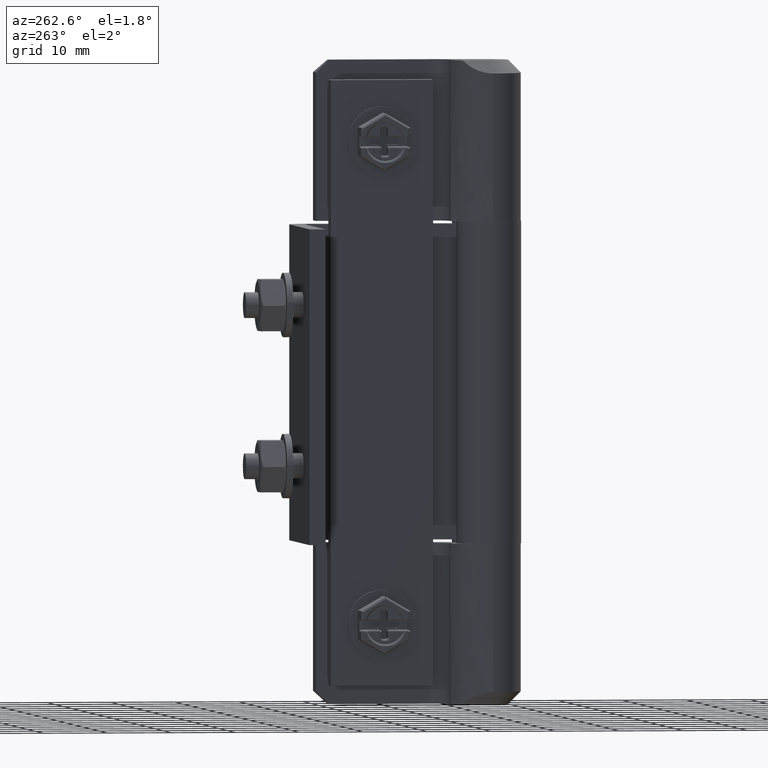
[diagram: clean part render]
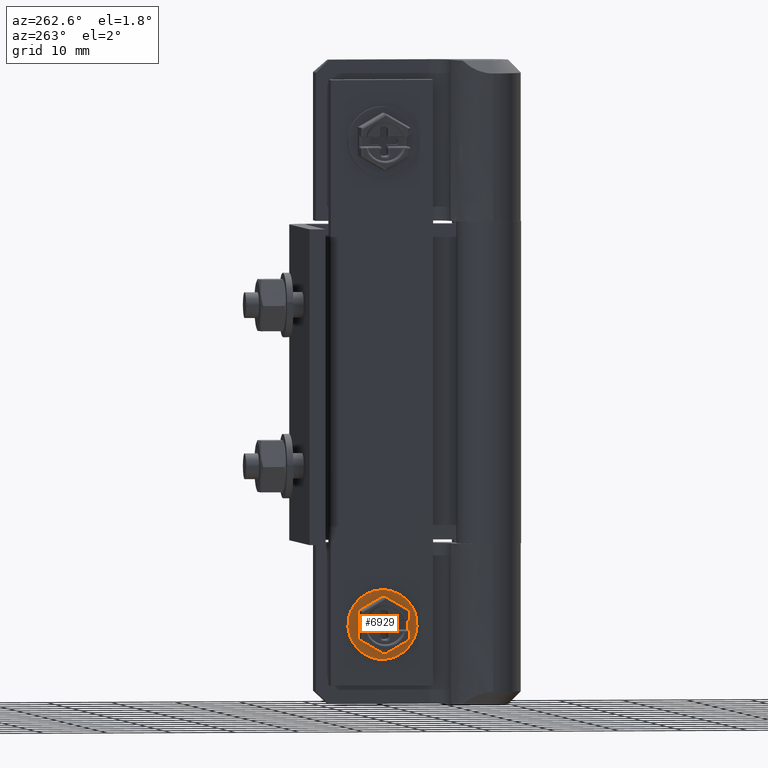
[diagram: same view with one face highlighted and labeled with its STEP entity id]
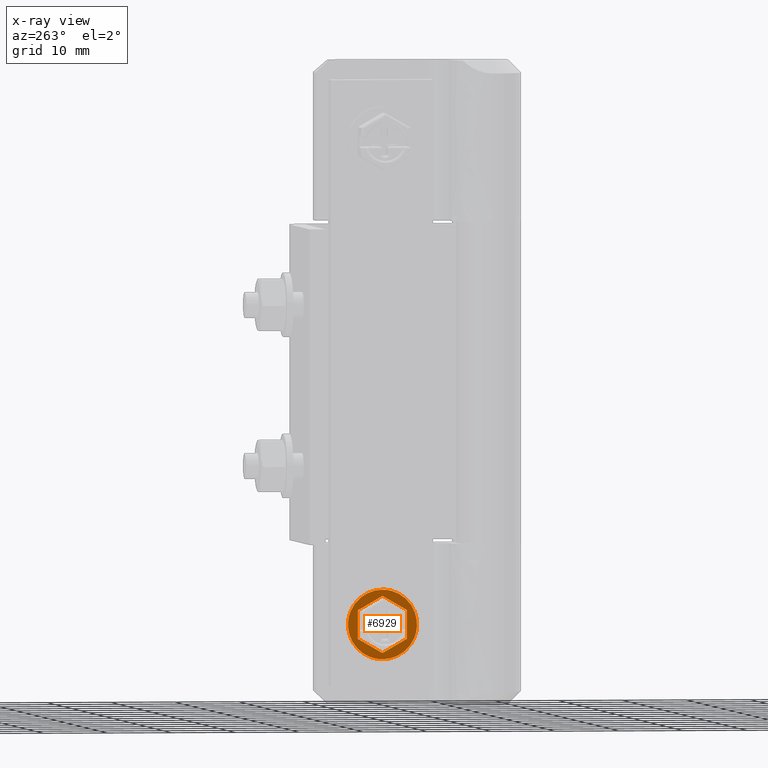
[diagram: x-ray of the same camera — body ghosted, the highlighted face saturated]
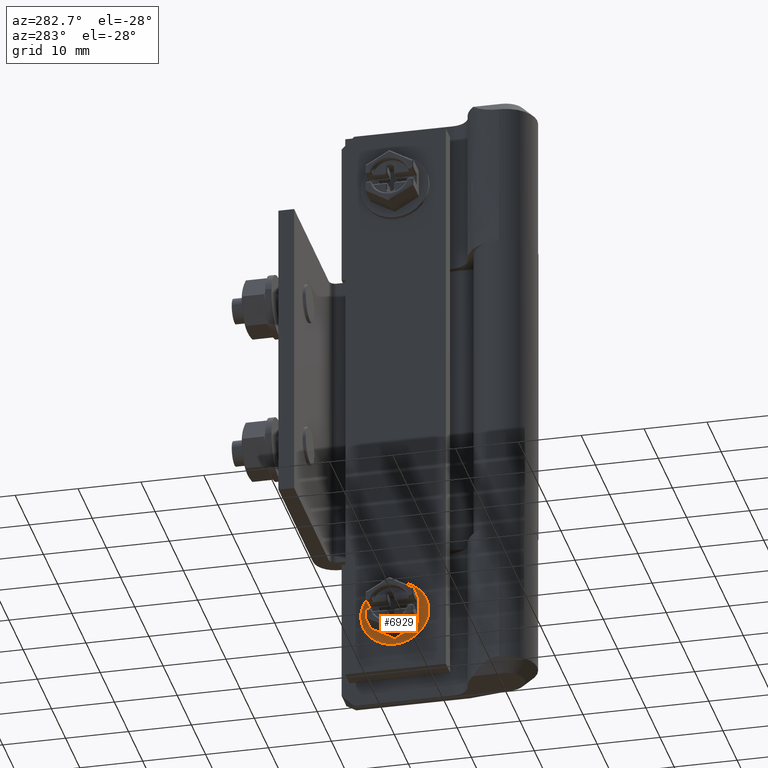
[diagram: same view with one face highlighted and labeled with its STEP entity id]
A machine part, auxiliary view. The second image highlights one B-rep face of the part: STEP entity #6929.
The next image is the same camera in x-ray: the body ghosted, the highlighted face saturated — about 0% of this face is hidden behind the body in this view.
A second angle (auxiliary view) of the same face is appended — the face is thin or edge-on in the first view.
In plain terms, the highlighted face is a freeform B-spline surface patch.
Its self-contained STEP definition (entity closure, byte-faithful):
#2905=CARTESIAN_POINT('',(-2.950000056577860,22.389927458798571,87.829566285290184));
#2906=VERTEX_POINT('',#2905);
#2912=CARTESIAN_POINT('',(-2.950000056577860,16.999999291319799,92.899904412513237));
#2913=VERTEX_POINT('',#2912);
#2914=CARTESIAN_POINT('',(-2.950000056577860,16.999999291319799,92.899904412513237));
#2915=CARTESIAN_POINT('',(-2.950000056577860,22.079812293668045,92.899904412513251));
#2916=CARTESIAN_POINT('',(-2.950000056577860,22.389927458798574,87.829566285290184));
#2924=(BOUNDED_CURVE()B_SPLINE_CURVE(2,(#2914,#2915,#2916),.UNSPECIFIED.,.F.,.U.)B_SPLINE_CURVE_WITH_KNOTS((3,3),(0.500000000000000,0.739332962234486),.UNSPECIFIED.)CURVE()GEOMETRIC_REPRESENTATION_ITEM()RATIONAL_B_SPLINE_CURVE((1.0,0.719603993291931,0.976072041657167))REPRESENTATION_ITEM(''));
#2925=EDGE_CURVE('',#2913,#2906,#2924,.T.);
#2927=CARTESIAN_POINT('',(-2.950000056577860,11.637747594275600,86.862519258498040));
#2928=VERTEX_POINT('',#2927);
#2929=CARTESIAN_POINT('',(-2.950000056577860,11.637747594275595,86.862519258498040));
#2930=CARTESIAN_POINT('',(-2.950000056577860,11.599999034833559,87.180093894607069));
#2931=CARTESIAN_POINT('',(-2.950000056577860,11.599999034833560,87.499904156027000));
#2932=CARTESIAN_POINT('',(-2.950000056577860,11.599999034833559,92.899904412513251));
#2933=CARTESIAN_POINT('',(-2.950000056577860,16.999999291319799,92.899904412513237));
#2941=(BOUNDED_CURVE()B_SPLINE_CURVE(2,(#2929,#2930,#2931,#2932,#2933),.UNSPECIFIED.,.F.,.U.)B_SPLINE_CURVE_WITH_KNOTS((3,2,3),(0.229562473508817,0.250000000000000,0.500000000000000),.UNSPECIFIED.)CURVE()GEOMETRIC_REPRESENTATION_ITEM()RATIONAL_B_SPLINE_CURVE((0.956026754174504,0.976055948325649,1.0,0.707106781186548,1.0))REPRESENTATION_ITEM(''));
#2942=EDGE_CURVE('',#2928,#2913,#2941,.T.);
#2986=CARTESIAN_POINT('',(-2.950000056577860,16.999999291319799,82.099903899540763));
#2987=VERTEX_POINT('',#2986);
#2988=CARTESIAN_POINT('',(-2.950000056577860,16.999999291319799,82.099903899540763));
#2989=CARTESIAN_POINT('',(-2.950000056577860,12.203856623572982,82.099903899540763));
#2990=CARTESIAN_POINT('',(-2.950000056577860,11.637747594275595,86.862519258498040));
#2998=(BOUNDED_CURVE()B_SPLINE_CURVE(2,(#2988,#2989,#2990),.UNSPECIFIED.,.F.,.U.)B_SPLINE_CURVE_WITH_KNOTS((3,3),(0.0,0.229562473508817),.UNSPECIFIED.)CURVE()GEOMETRIC_REPRESENTATION_ITEM()RATIONAL_B_SPLINE_CURVE((1.0,0.731050832860899,0.956026754174504))REPRESENTATION_ITEM(''));
#2999=EDGE_CURVE('',#2987,#2928,#2998,.T.);
#3001=CARTESIAN_POINT('',(-2.950000056577860,22.389927458798578,87.829566285290184));
#3002=CARTESIAN_POINT('',(-2.950000056577861,22.399999547806040,87.664889085792936));
#3003=CARTESIAN_POINT('',(-2.950000056577860,22.399999547806040,87.499904156027000));
#3004=CARTESIAN_POINT('',(-2.950000056577860,22.399999547806040,82.099903899540763));
#3005=CARTESIAN_POINT('',(-2.950000056577860,16.999999291319799,82.099903899540763));
#3013=(BOUNDED_CURVE()B_SPLINE_CURVE(2,(#3001,#3002,#3003,#3004,#3005),.UNSPECIFIED.,.F.,.U.)B_SPLINE_CURVE_WITH_KNOTS((3,2,3),(0.739332962234487,0.750000000000000,1.0),.UNSPECIFIED.)CURVE()GEOMETRIC_REPRESENTATION_ITEM()RATIONAL_B_SPLINE_CURVE((0.976072041657168,0.987502787894617,1.0,0.707106781186548,1.0))REPRESENTATION_ITEM(''));
#3014=EDGE_CURVE('',#2906,#2987,#3013,.T.);
#6763=CARTESIAN_POINT('',(-2.950000056577860,13.159176443106521,89.717404261352613));
#6764=VERTEX_POINT('',#6763);
#6775=CARTESIAN_POINT('',(-2.950000056577890,13.159176443106521,85.282404050701103));
#6776=VERTEX_POINT('',#6775);
#6782=CARTESIAN_POINT('',(-2.950000056577890,13.159176443106521,85.282404050701103));
#6783=CARTESIAN_POINT('',(-2.950000056577860,13.159176443106521,89.717404261352613));
#6784=QUASI_UNIFORM_CURVE('',1,(#6782,#6783),.UNSPECIFIED.,.F.,.U.);
#6785=EDGE_CURVE('',#6776,#6764,#6784,.T.);
#6797=CARTESIAN_POINT('',(-2.950000056577860,16.999999291319948,83.064903945375605));
#6798=VERTEX_POINT('',#6797);
#6804=CARTESIAN_POINT('',(-2.950000056577860,16.999999291319948,83.064903945375605));
#6805=CARTESIAN_POINT('',(-2.950000056577890,13.159176443106521,85.282404050701103));
#6806=QUASI_UNIFORM_CURVE('',1,(#6804,#6805),.UNSPECIFIED.,.F.,.U.);
#6807=EDGE_CURVE('',#6798,#6776,#6806,.T.);
#6819=CARTESIAN_POINT('',(-2.950000056577860,20.840822139533099,85.282404050701317));
#6820=VERTEX_POINT('',#6819);
#6826=CARTESIAN_POINT('',(-2.950000056577860,20.840822139533099,85.282404050701317));
#6827=CARTESIAN_POINT('',(-2.950000056577860,16.999999291319948,83.064903945375605));
#6828=QUASI_UNIFORM_CURVE('',1,(#6826,#6827),.UNSPECIFIED.,.F.,.U.);
#6829=EDGE_CURVE('',#6820,#6798,#6828,.T.);
#6841=CARTESIAN_POINT('',(-2.950000056577860,20.840822139533149,89.717404261352797));
#6842=VERTEX_POINT('',#6841);
#6848=CARTESIAN_POINT('',(-2.950000056577860,20.840822139533149,89.717404261352797));
#6849=CARTESIAN_POINT('',(-2.950000056577860,20.840822139533099,85.282404050701317));
#6850=QUASI_UNIFORM_CURVE('',1,(#6848,#6849),.UNSPECIFIED.,.F.,.U.);
#6851=EDGE_CURVE('',#6842,#6820,#6850,.T.);
#6867=CARTESIAN_POINT('',(-2.950000056577860,16.999999291319948,91.934904366678495));
#6868=VERTEX_POINT('',#6867);
#6874=CARTESIAN_POINT('',(-2.950000056577860,16.999999291319948,91.934904366678495));
#6875=CARTESIAN_POINT('',(-2.950000056577860,20.840822139533149,89.717404261352797));
#6876=QUASI_UNIFORM_CURVE('',1,(#6874,#6875),.UNSPECIFIED.,.F.,.U.);
#6877=EDGE_CURVE('',#6868,#6842,#6876,.T.);
#6890=CARTESIAN_POINT('',(-2.950000056577860,13.159176443106521,89.717404261352613));
#6891=CARTESIAN_POINT('',(-2.950000056577860,16.999999291319948,91.934904366678495));
#6892=QUASI_UNIFORM_CURVE('',1,(#6890,#6891),.UNSPECIFIED.,.F.,.U.);
#6893=EDGE_CURVE('',#6764,#6868,#6892,.T.);
#6910=CARTESIAN_POINT('',(-2.950000056577890,22.939329173701928,93.439362133826748));
#6911=CARTESIAN_POINT('',(-2.950000056577890,11.060636385578720,93.439362133826748));
#6912=CARTESIAN_POINT('',(-2.950000056577890,22.939329173701928,81.560446950703493));
#6913=CARTESIAN_POINT('',(-2.950000056577890,11.060636385578720,81.560446950703493));
#6914=B_SPLINE_SURFACE_WITH_KNOTS('',1,1,((#6910,#6912),(#6911,#6913)),.UNSPECIFIED.,.F.,.F.,.U.,(2,2),(2,2),(0.0,11.878692788123210),(0.0,11.878915183123249),.UNSPECIFIED.);
#6915=ORIENTED_EDGE('',*,*,#2999,.T.);
#6916=ORIENTED_EDGE('',*,*,#2942,.T.);
#6917=ORIENTED_EDGE('',*,*,#2925,.T.);
#6918=ORIENTED_EDGE('',*,*,#3014,.T.);
#6919=EDGE_LOOP('',(#6915,#6916,#6917,#6918));
#6920=FACE_OUTER_BOUND('',#6919,.T.);
#6921=ORIENTED_EDGE('',*,*,#6877,.F.);
#6922=ORIENTED_EDGE('',*,*,#6893,.F.);
#6923=ORIENTED_EDGE('',*,*,#6785,.F.);
#6924=ORIENTED_EDGE('',*,*,#6807,.F.);
#6925=ORIENTED_EDGE('',*,*,#6829,.F.);
#6926=ORIENTED_EDGE('',*,*,#6851,.F.);
#6927=EDGE_LOOP('',(#6921,#6922,#6923,#6924,#6925,#6926));
#6928=FACE_BOUND('',#6927,.T.);
#6929=ADVANCED_FACE('',(#6920,#6928),#6914,.F.);